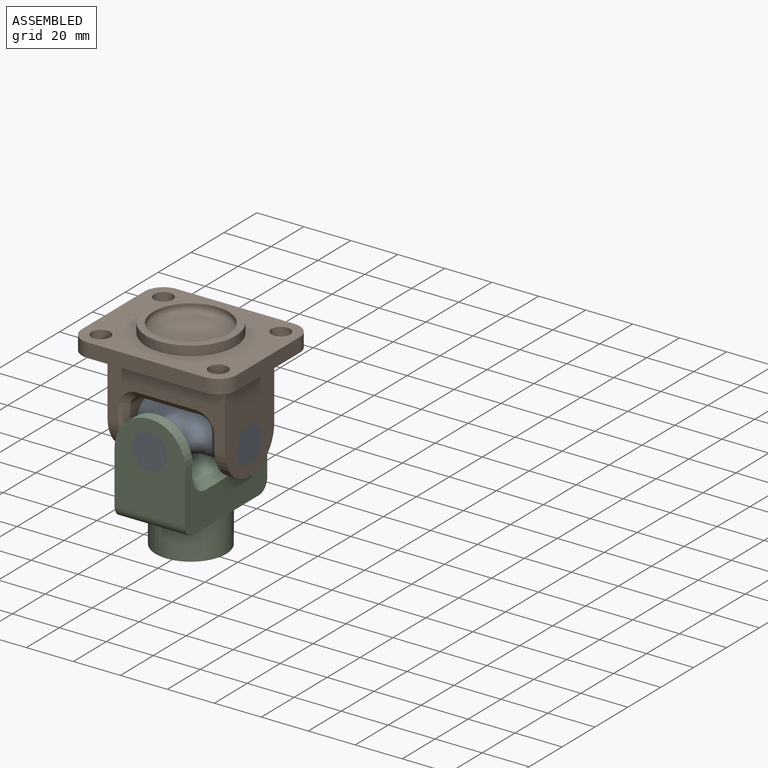
[diagram: assembled view]
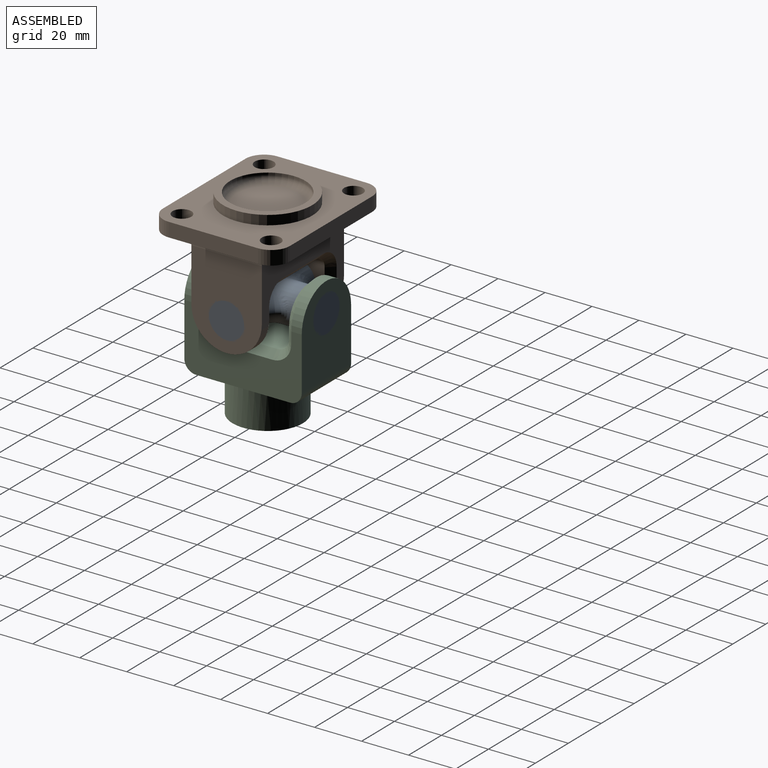
[diagram: assembled view, second angle]
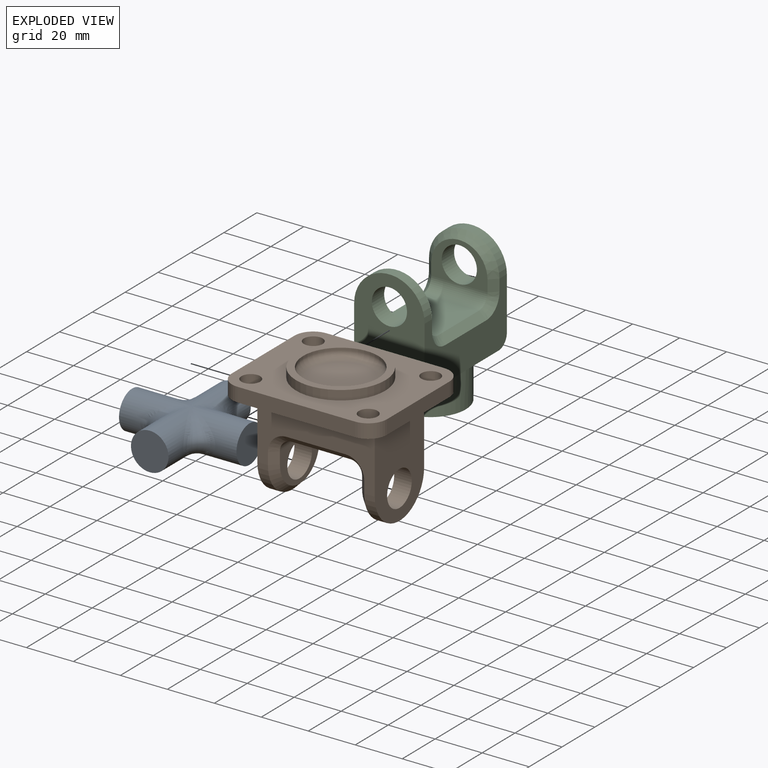
[diagram: exploded view]
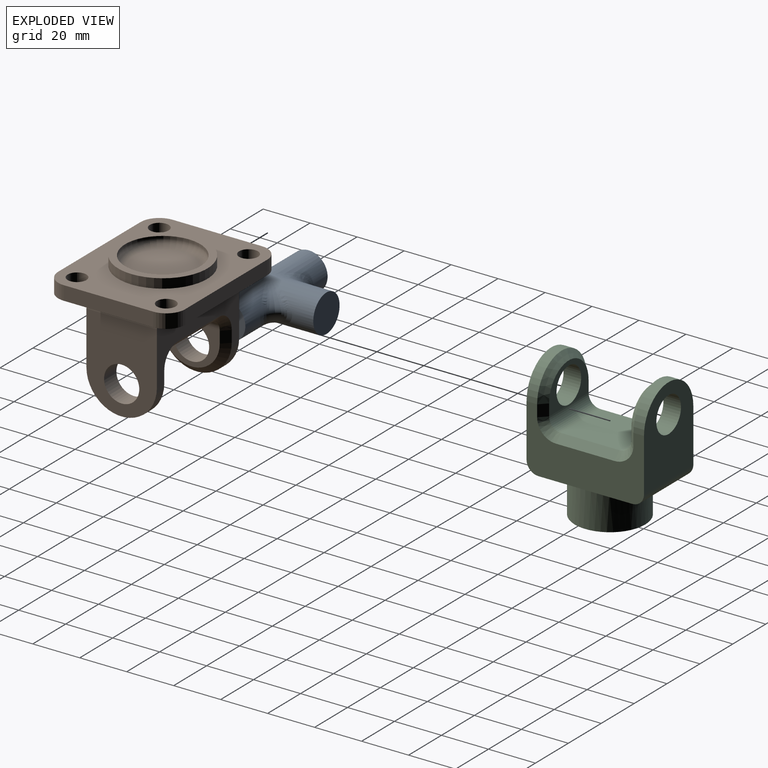
[diagram: exploded view, second angle]
ASSEMBLY  parts=3 mates=2
PART A: 12 faces, bbox 50x50x16 mm
  f0: cylinder r=8mm len=25mm, axis (-1,0,0), area 744.6mm2, adj f1,f9,f10
  f1: plane 16x16mm, normal (1,0,0), area 201.1mm2, adj f0
  f2: plane 16x16mm, normal (0,1,0), area 201.1mm2, adj f3
  f3: cylinder r=8mm len=25mm, axis (0,1,0), area 744.6mm2, adj f2,f9,f11
  f4: plane 16x16mm, normal (-1,0,0), area 201.1mm2, adj f5
  f5: cylinder r=8mm len=25mm, axis (-1,0,0), area 744.6mm2, adj f4,f8,f11
  f6: cylinder r=8mm len=25mm, axis (0,1,0), area 744.6mm2, adj f7,f8,f10
  f7: plane 16x16mm, normal (0,-1,0), area 201.1mm2, adj f6
  f8: bspline ~16x16mm, area 241.7mm2, adj f5,f6
  f9: bspline ~16x16mm, area 241.7mm2, adj f0,f3
  f10: bspline ~16x16mm, area 241.7mm2, adj f0,f6
  f11: bspline ~16x16mm, area 241.7mm2, adj f3,f5
PART B: 46 faces, bbox 66x54x53.6 mm
  f0: plane 37.5x30mm, normal (1,0,0), area 851.7mm2, adj f5,f6,f10,f12,f14
  f1: plane 24x17mm, normal (-1,0,0), area 169.5mm2, adj f7,f14,f15,f17,f19
  f2: plane 25x24mm, normal (0,0,1), area 600mm2, adj f7,f8,f18,f23
  f3: plane 24x17mm, normal (1,0,0), area 169.5mm2, adj f8,f13,f22,f24,f26
  f4: plane 37.5x30mm, normal (-1,0,0), area 851.7mm2, adj f5,f6,f9,f11,f13
  f5: plane 50x27.5mm, normal (0,-1,0), area 858.7mm2, adj f0,f4,f9,f10,f11,f12,f19,f21
  f6: plane 50x27.5mm, normal (0,1,0), area 858.7mm2, adj f0,f4,f9,f10,f11,f12,f15,f16
  f7: cylinder r=5mm len=24mm, axis (0,-1,0), area 188.5mm2, adj f1,f2,f16,f21
  f8: cylinder r=5mm len=24mm, axis (0,-1,0), area 188.5mm2, adj f2,f3,f20,f25
  f9: cylinder r=5mm len=30mm, axis (0,1,0), area 235.6mm2, adj f4,f5,f6,f36
  f10: cylinder r=5mm len=30mm, axis (0,1,0), area 235.6mm2, adj f0,f5,f6,f36
  f11: cylinder r=15mm len=30mm, axis (1,0,0), area 212.1mm2, adj f4,f5,f6,f24
  f12: cylinder r=15mm len=30mm, axis (1,0,0), area 212.1mm2, adj f0,f5,f6,f17
  f13: cylinder r=7.5mm len=15mm, axis (1,0,0), area 353.4mm2, adj f3,f4
  f14: cylinder r=7.5mm len=15mm, axis (1,0,0), area 353.4mm2, adj f0,f1
  f15: plane 5x3mm, normal (-0.71,0.71,0), area 21.2mm2, adj f1,f6,f16,f17
  f16: cone r=8mm half-angle=45deg, axis (0,1,0), area 43.3mm2, adj f6,f7,f15,f18
  f17: cone r=12mm half-angle=45deg, axis (1,0,0), area 179.9mm2, adj f1,f12,f15,f19
  f18: plane 25x3mm, normal (0,0.71,0.71), area 106.1mm2, adj f2,f6,f16,f20
  f19: plane 5x3mm, normal (-0.71,-0.71,0), area 21.2mm2, adj f1,f5,f17,f21
  f20: cone r=8mm half-angle=45deg, axis (0,1,0), area 43.3mm2, adj f6,f8,f18,f22
  f21: cone r=8mm half-angle=45deg, axis (0,-1,0), area 43.3mm2, adj f5,f7,f19,f23
  f22: plane 5x3mm, normal (0.71,0.71,0), area 21.2mm2, adj f3,f6,f20,f24
  f23: plane 25x3mm, normal (0,-0.71,0.71), area 106.1mm2, adj f2,f5,f21,f25
  f24: cone r=12mm half-angle=45deg, axis (-1,0,0), area 179.9mm2, adj f3,f11,f22,f26
  f25: cone r=8mm half-angle=45deg, axis (0,-1,0), area 43.3mm2, adj f5,f8,f23,f26
  f26: plane 5x3mm, normal (0.71,-0.71,0), area 21.2mm2, adj f3,f5,f24,f25
  f27: plane 50x6mm, normal (0,1,0), area 300mm2, adj f28,f34,f35,f36
  f28: cylinder r=8mm len=8mm, axis (0,0,1), area 75.4mm2, adj f27,f29,f35,f36
  f29: plane 38x6mm, normal (1,0,0), area 228mm2, adj f28,f30,f35,f36
  f30: cylinder r=8mm len=8mm, axis (0,0,1), area 75.4mm2, adj f29,f31,f35,f36
  f31: plane 50x6mm, normal (0,-1,0), area 300mm2, adj f30,f32,f35,f36
  f32: cylinder r=8mm len=8mm, axis (0,0,1), area 75.4mm2, adj f31,f33,f35,f36
  f33: plane 38x6mm, normal (-1,0,0), area 228mm2, adj f32,f34,f35,f36
  f34: cylinder r=8mm len=8mm, axis (0,0,1), area 75.4mm2, adj f27,f33,f35,f36
  f35: plane 66x54mm, normal (0,0,-1), area 2173.9mm2, adj f27,f28,f29,f30,f31,f32,f33,f34
  f36: plane 66x54mm, normal (0,0,1), area 2108mm2, adj f5,f6,f9,f10,f27,f28,f29,f30
  f37: cylinder r=4mm len=8mm, axis (0,0,-1), area 150.8mm2, adj f35,f36
  f38: cylinder r=4mm len=8mm, axis (0,0,-1), area 150.8mm2, adj f35,f36
  f39: cylinder r=4mm len=8mm, axis (0,0,-1), area 150.8mm2, adj f35,f36
  f40: cylinder r=4mm len=8mm, axis (0,0,-1), area 150.8mm2, adj f35,f36
  f41: cylinder r=16mm len=32mm, axis (0,0,1), area 100.5mm2, adj f43,f45
  f42: cylinder r=19mm len=38mm, axis (0,0,1), area 477.5mm2, adj f35,f43
  f43: plane 38x38mm, normal (0,0,-1), area 329.9mm2, adj f41,f42
  f44: plane 26x26mm, normal (0,0,-1), area 530.9mm2, adj f45
  f45: torus R=13mm, axis (0,0,-1), area 441.5mm2, adj f41,f44
PART C: 31 faces, bbox 50x30x57.5 mm
  f0: plane 30x20mm, normal (0,0,-1), area 246.6mm2, adj f7,f8,f12,f17
  f1: plane 37.5x30mm, normal (1,0,0), area 851.7mm2, adj f7,f8,f12,f14,f16
  f2: plane 24x17mm, normal (-1,0,0), area 169.5mm2, adj f9,f16,f19,f21,f23
  f3: plane 25x24mm, normal (0,0,1), area 600mm2, adj f9,f10,f22,f27
  f4: plane 24x17mm, normal (1,0,0), area 169.5mm2, adj f10,f15,f26,f28,f30
  f5: plane 37.5x30mm, normal (-1,0,0), area 851.7mm2, adj f7,f8,f11,f13,f15
  f6: plane 30x20mm, normal (0,0,-1), area 246.6mm2, adj f7,f8,f11,f17
  f7: plane 50x27.5mm, normal (0,-1,0), area 858.7mm2, adj f0,f1,f5,f6,f11,f12,f13,f14
  f8: plane 50x27.5mm, normal (0,1,0), area 858.7mm2, adj f0,f1,f5,f6,f11,f12,f13,f14
  f9: cylinder r=5mm len=24mm, axis (0,-1,0), area 188.5mm2, adj f2,f3,f20,f25
  f10: cylinder r=5mm len=24mm, axis (0,-1,0), area 188.5mm2, adj f3,f4,f24,f29
  f11: cylinder r=5mm len=30mm, axis (0,1,0), area 235.6mm2, adj f5,f6,f7,f8
  f12: cylinder r=5mm len=30mm, axis (0,1,0), area 235.6mm2, adj f0,f1,f7,f8
  f13: cylinder r=15mm len=30mm, axis (1,0,0), area 212.1mm2, adj f5,f7,f8,f28
  f14: cylinder r=15mm len=30mm, axis (1,0,0), area 212.1mm2, adj f1,f7,f8,f21
  f15: cylinder r=7.5mm len=15mm, axis (1,0,0), area 353.4mm2, adj f4,f5
  f16: cylinder r=7.5mm len=15mm, axis (1,0,0), area 353.4mm2, adj f1,f2
  f17: cylinder r=15mm len=30mm, axis (0,0,1), area 1413.7mm2, adj f0,f6,f18
  f18: plane 30x30mm, normal (0,0,-1), area 706.9mm2, adj f17
  f19: plane 5x3mm, normal (-0.71,0.71,0), area 21.2mm2, adj f2,f8,f20,f21
  f20: cone r=8mm half-angle=45deg, axis (0,1,0), area 43.3mm2, adj f8,f9,f19,f22
  f21: cone r=12mm half-angle=45deg, axis (1,0,0), area 179.9mm2, adj f2,f14,f19,f23
  f22: plane 25x3mm, normal (0,0.71,0.71), area 106.1mm2, adj f3,f8,f20,f24
  f23: plane 5x3mm, normal (-0.71,-0.71,0), area 21.2mm2, adj f2,f7,f21,f25
  f24: cone r=8mm half-angle=45deg, axis (0,1,0), area 43.3mm2, adj f8,f10,f22,f26
  f25: cone r=8mm half-angle=45deg, axis (0,-1,0), area 43.3mm2, adj f7,f9,f23,f27
  f26: plane 5x3mm, normal (0.71,0.71,0), area 21.2mm2, adj f4,f8,f24,f28
  f27: plane 25x3mm, normal (0,-0.71,0.71), area 106.1mm2, adj f3,f7,f25,f29
  f28: cone r=12mm half-angle=45deg, axis (-1,0,0), area 179.9mm2, adj f4,f13,f26,f30
  f29: cone r=8mm half-angle=45deg, axis (0,-1,0), area 43.3mm2, adj f7,f10,f27,f30
  f30: plane 5x3mm, normal (0.71,-0.71,0), area 21.2mm2, adj f4,f7,f28,f29
PLACE A at identity
PLACE B rot(axis=(0,-1,0),180deg) t=(0,100,0)mm
PLACE C rot(axis=(0,0,-1),90deg) t=(0,0,0)mm
MATE revolute B.f13 <-> A.f0  axis (-1,0,0) through (0,0,0)mm
MATE revolute C.f15 <-> A.f3  axis (0,-1,0) through (0,-25,0)mm
